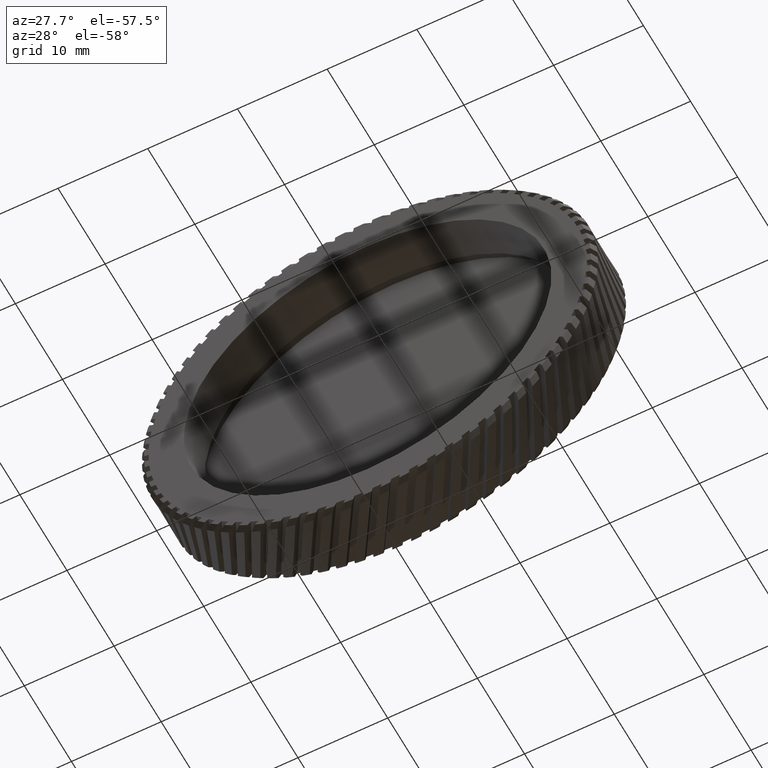
[diagram: clean part render]
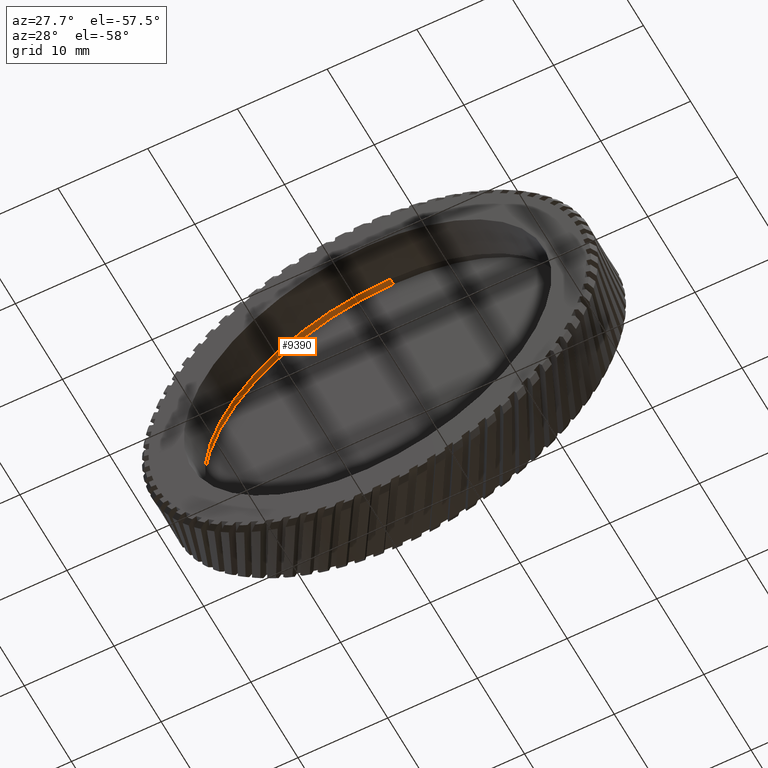
[diagram: same view with one face highlighted and labeled with its STEP entity id]
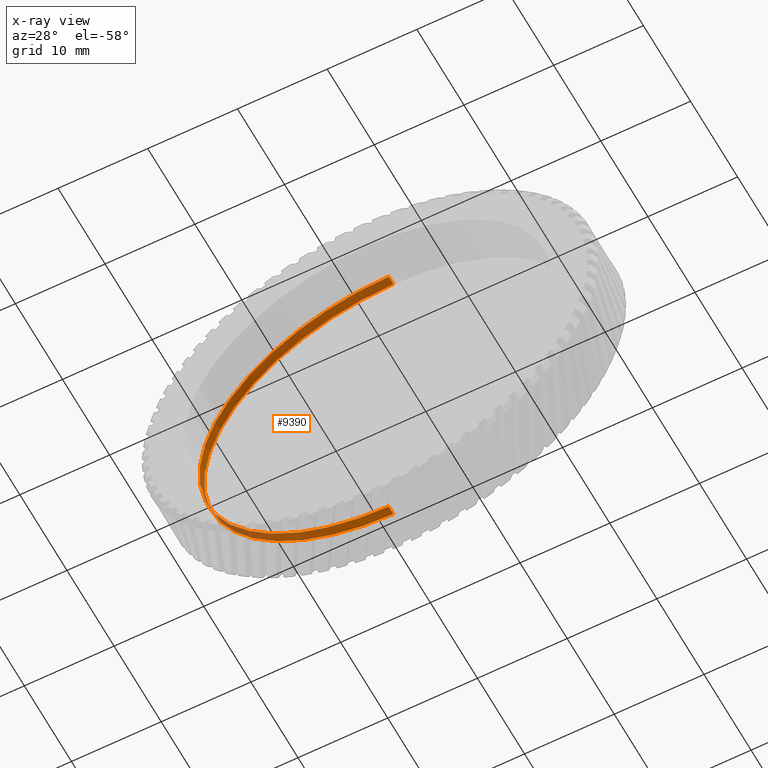
[diagram: x-ray of the same camera — body ghosted, the highlighted face saturated]
A machine part, auxiliary view. The second image highlights one B-rep face of the part: STEP entity #9390.
The next image is the same camera in x-ray: the body ghosted, the highlighted face saturated — about 8% of this face is hidden behind the body in this view.
In plain terms, the highlighted cylindrical surface (partial cylindrical patch) has radius 21.1 mm, axis along (-0, 1, -0).
Its self-contained STEP definition (entity closure, byte-faithful):
#328 = CARTESIAN_POINT ( 'NONE',  ( 2.584004746200916200E-015, -8.830884482231917700, -21.10000000000000900 ) ) ;
#355 = CARTESIAN_POINT ( 'NONE',  ( 0.0000000000000000000, -8.830884482231917700, 0.0000000000000000000 ) ) ;
#404 = DIRECTION ( 'NONE',  ( -0.0000000000000000000, 1.000000000000000000, -0.0000000000000000000 ) ) ;
#791 = ORIENTED_EDGE ( 'NONE', *, *, #4854, .F. ) ;
#814 = FACE_OUTER_BOUND ( 'NONE', #9635, .T. ) ;
#1169 = AXIS2_PLACEMENT_3D ( 'NONE', #2012, #15946, #5728 ) ;
#1515 = CIRCLE ( 'NONE', #14893, 21.10000000000000900 ) ;
#2012 = CARTESIAN_POINT ( 'NONE',  ( 0.0000000000000000000, -7.830884482231917700, 0.0000000000000000000 ) ) ;
#2064 = VERTEX_POINT ( 'NONE', #328 ) ;
#4090 = EDGE_CURVE ( 'NONE', #13260, #15988, #5101, .T. ) ;
#4337 = VECTOR ( 'NONE', #15982, 1000.000000000000000 ) ;
#4502 = CARTESIAN_POINT ( 'NONE',  ( 0.0000000000000000000, -7.830884482231917700, 21.10000000000000900 ) ) ;
#4854 = EDGE_CURVE ( 'NONE', #2064, #5452, #1515, .T. ) ;
#5101 = CIRCLE ( 'NONE', #1169, 21.10000000000000900 ) ;
#5210 = ORIENTED_EDGE ( 'NONE', *, *, #15135, .T. ) ;
#5452 = VERTEX_POINT ( 'NONE', #13357 ) ;
#5728 = DIRECTION ( 'NONE',  ( 0.0000000000000000000, 0.0000000000000000000, 1.000000000000000000 ) ) ;
#6356 = DIRECTION ( 'NONE',  ( -0.0000000000000000000, 1.000000000000000000, -0.0000000000000000000 ) ) ;
#6731 = LINE ( 'NONE', #10165, #7114 ) ;
#7114 = VECTOR ( 'NONE', #6356, 1000.000000000000000 ) ;
#8694 = LINE ( 'NONE', #9671, #4337 ) ;
#9390 = ADVANCED_FACE ( 'NONE', ( #814 ), #14217, .F. ) ;
#9635 = EDGE_LOOP ( 'NONE', ( #791, #5210, #15724, #14427 ) ) ;
#9671 = CARTESIAN_POINT ( 'NONE',  ( 0.0000000000000000000, 46.02073106022621100, 21.10000000000000900 ) ) ;
#9990 = AXIS2_PLACEMENT_3D ( 'NONE', #15336, #15294, #10384 ) ;
#10165 = CARTESIAN_POINT ( 'NONE',  ( 2.584004746200916200E-015, 46.02073106022621100, -21.10000000000000900 ) ) ;
#10384 = DIRECTION ( 'NONE',  ( 0.0000000000000000000, 0.0000000000000000000, 1.000000000000000000 ) ) ;
#11340 = CARTESIAN_POINT ( 'NONE',  ( 2.584004746200916200E-015, -7.830884482231917700, -21.10000000000000900 ) ) ;
#12056 = DIRECTION ( 'NONE',  ( 0.0000000000000000000, 0.0000000000000000000, 1.000000000000000000 ) ) ;
#13260 = VERTEX_POINT ( 'NONE', #11340 ) ;
#13357 = CARTESIAN_POINT ( 'NONE',  ( 0.0000000000000000000, -8.830884482231917700, 21.10000000000000900 ) ) ;
#14217 = CYLINDRICAL_SURFACE ( 'NONE', #9990, 21.10000000000000900 ) ;
#14427 = ORIENTED_EDGE ( 'NONE', *, *, #14922, .F. ) ;
#14893 = AXIS2_PLACEMENT_3D ( 'NONE', #355, #404, #12056 ) ;
#14922 = EDGE_CURVE ( 'NONE', #5452, #15988, #8694, .T. ) ;
#15135 = EDGE_CURVE ( 'NONE', #2064, #13260, #6731, .T. ) ;
#15294 = DIRECTION ( 'NONE',  ( -0.0000000000000000000, 1.000000000000000000, -0.0000000000000000000 ) ) ;
#15336 = CARTESIAN_POINT ( 'NONE',  ( 0.0000000000000000000, 46.02073106022621100, 0.0000000000000000000 ) ) ;
#15724 = ORIENTED_EDGE ( 'NONE', *, *, #4090, .T. ) ;
#15946 = DIRECTION ( 'NONE',  ( -0.0000000000000000000, 1.000000000000000000, -0.0000000000000000000 ) ) ;
#15982 = DIRECTION ( 'NONE',  ( -0.0000000000000000000, 1.000000000000000000, -0.0000000000000000000 ) ) ;
#15988 = VERTEX_POINT ( 'NONE', #4502 ) ;